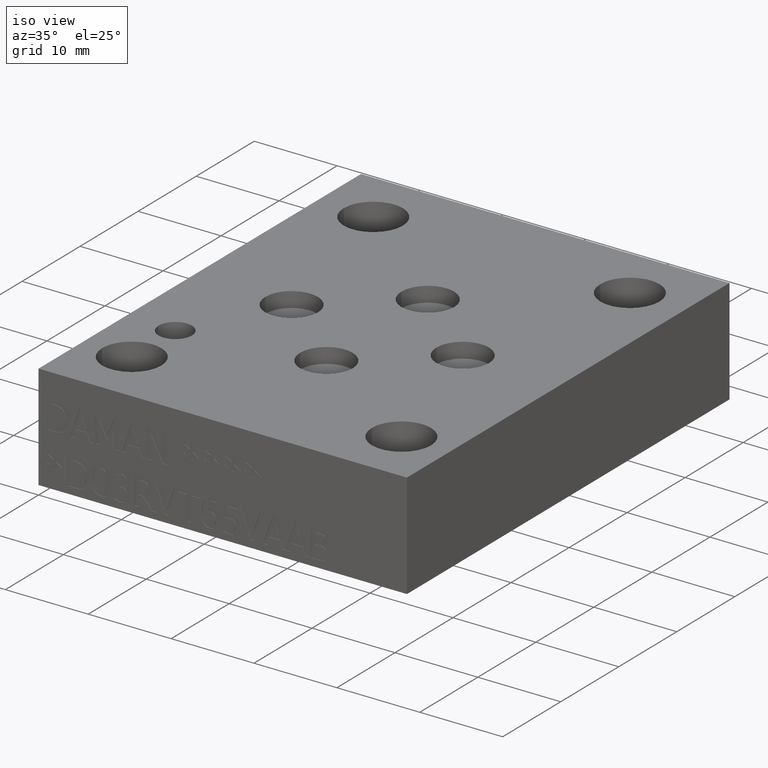
[diagram: clean part render]
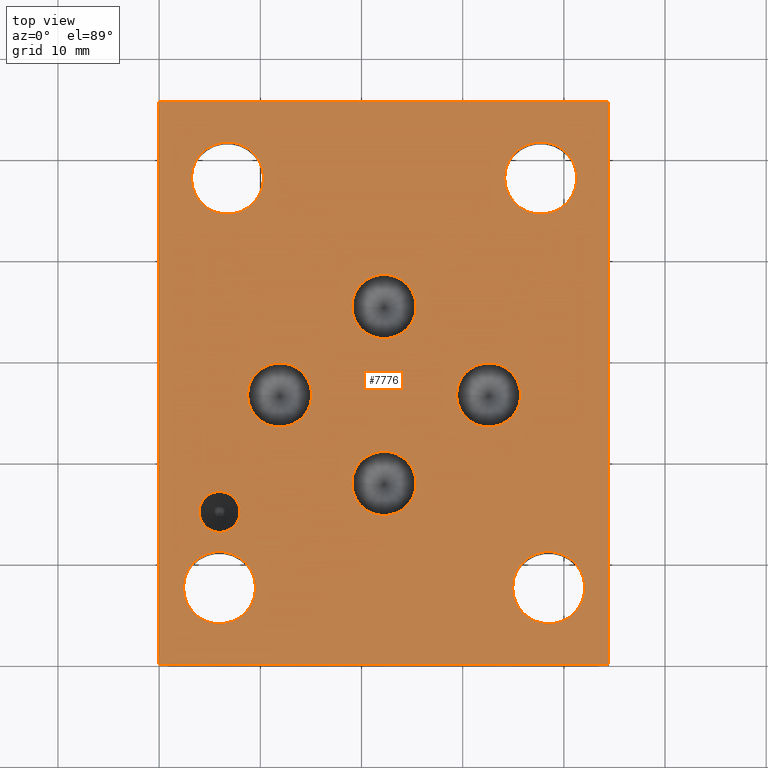
[diagram: tour spotlight — one face highlighted and labeled with its STEP entity id]
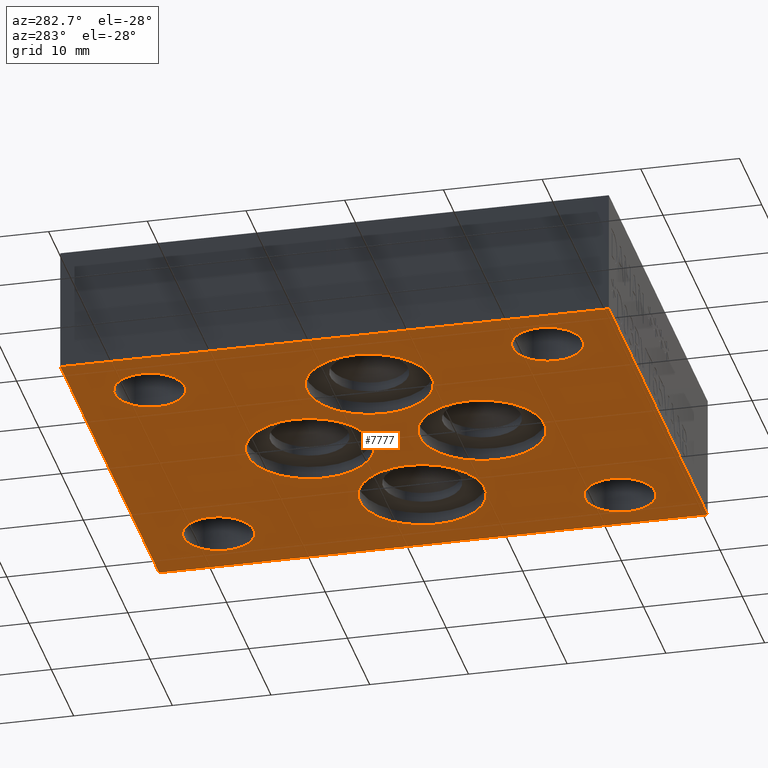
[diagram: tour spotlight — one face highlighted and labeled with its STEP entity id]
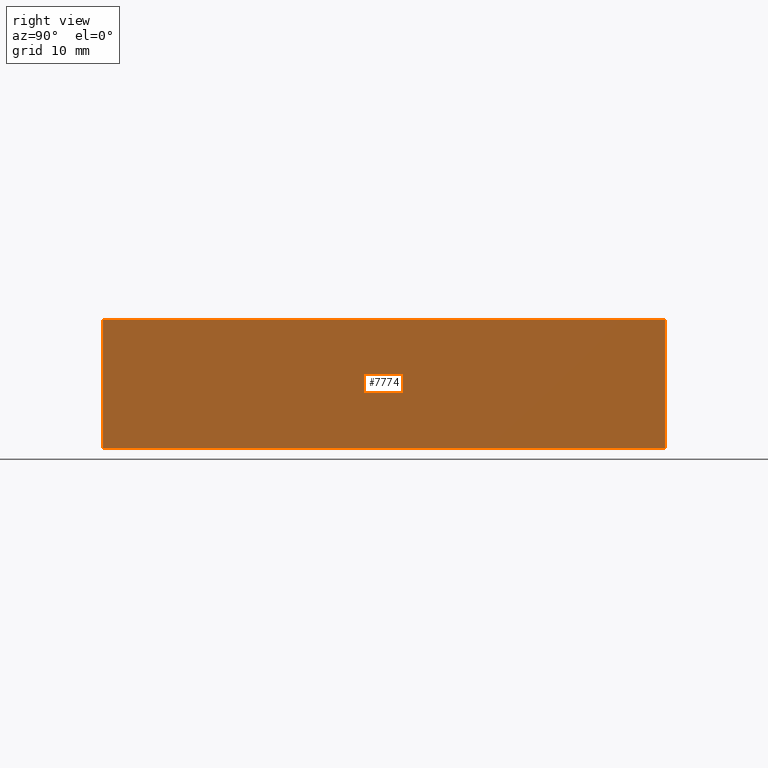
[diagram: tour spotlight — one face highlighted and labeled with its STEP entity id]
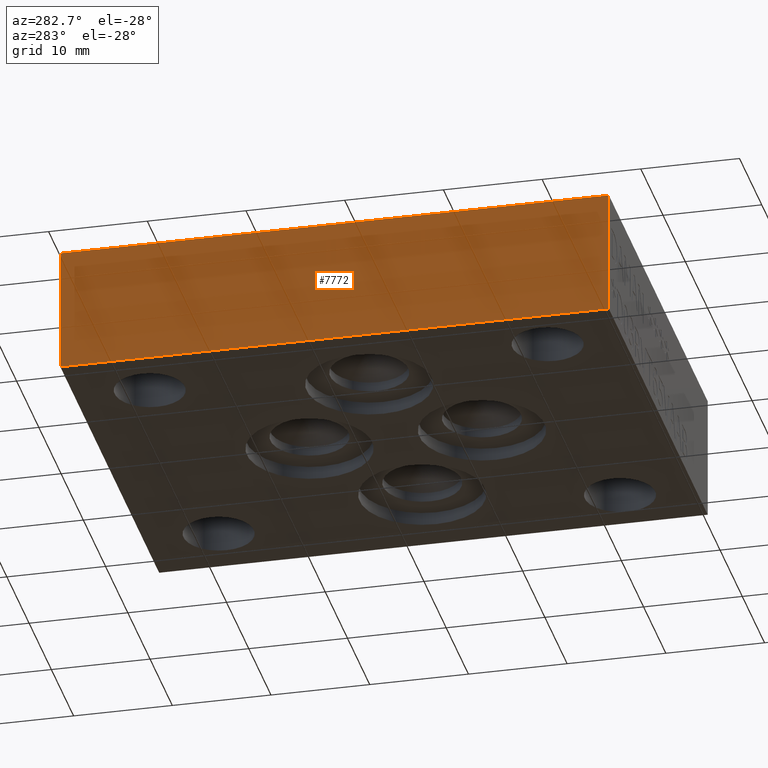
[diagram: tour spotlight — one face highlighted and labeled with its STEP entity id]
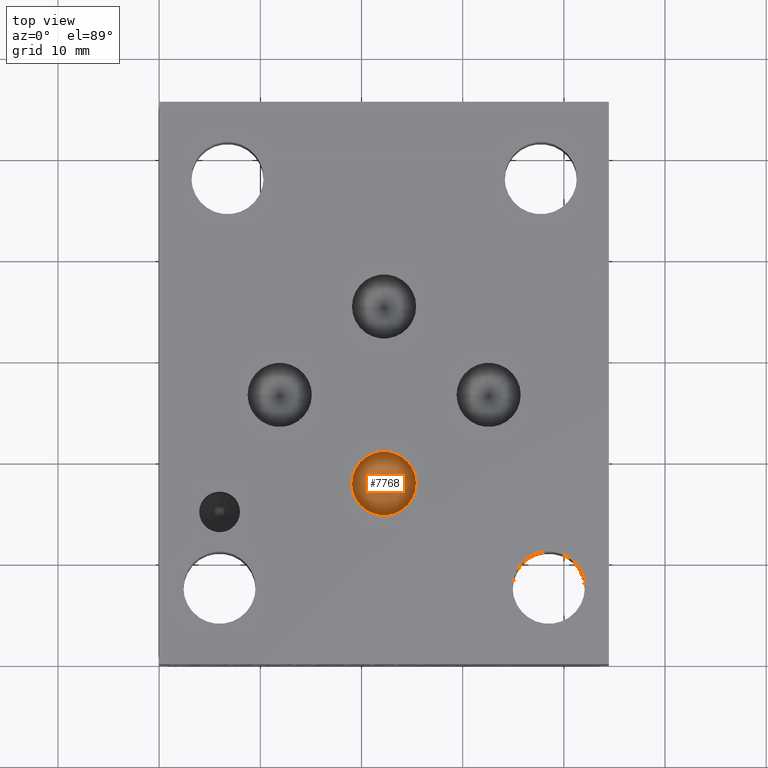
[diagram: tour spotlight — one face highlighted and labeled with its STEP entity id]
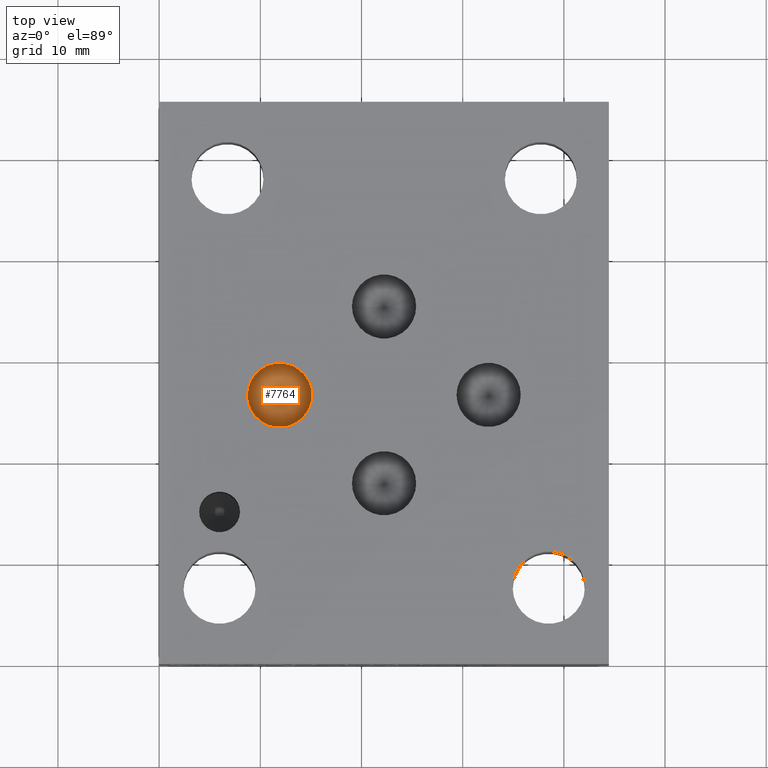
[diagram: tour spotlight — one face highlighted and labeled with its STEP entity id]
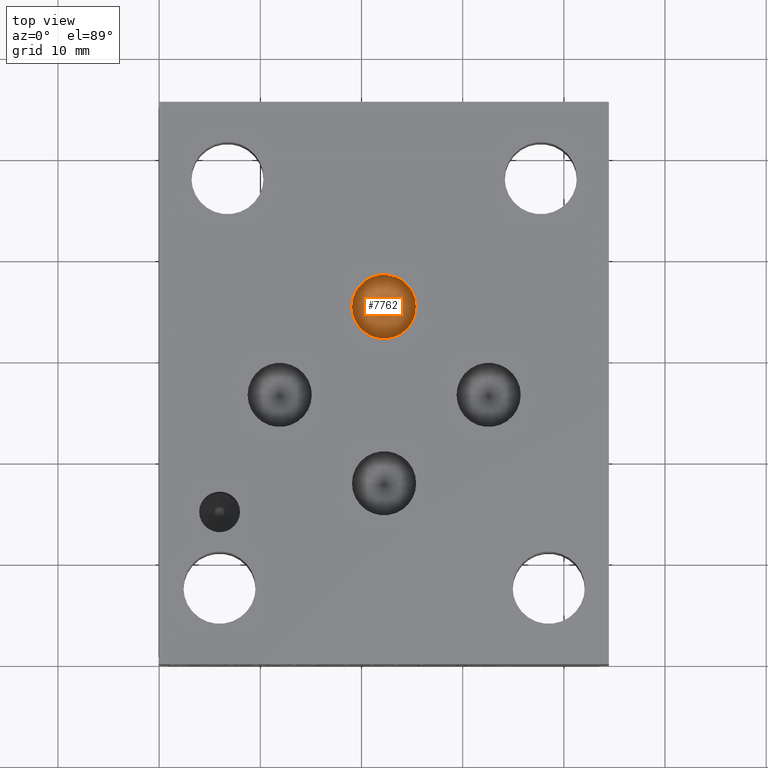
[diagram: tour spotlight — one face highlighted and labeled with its STEP entity id]
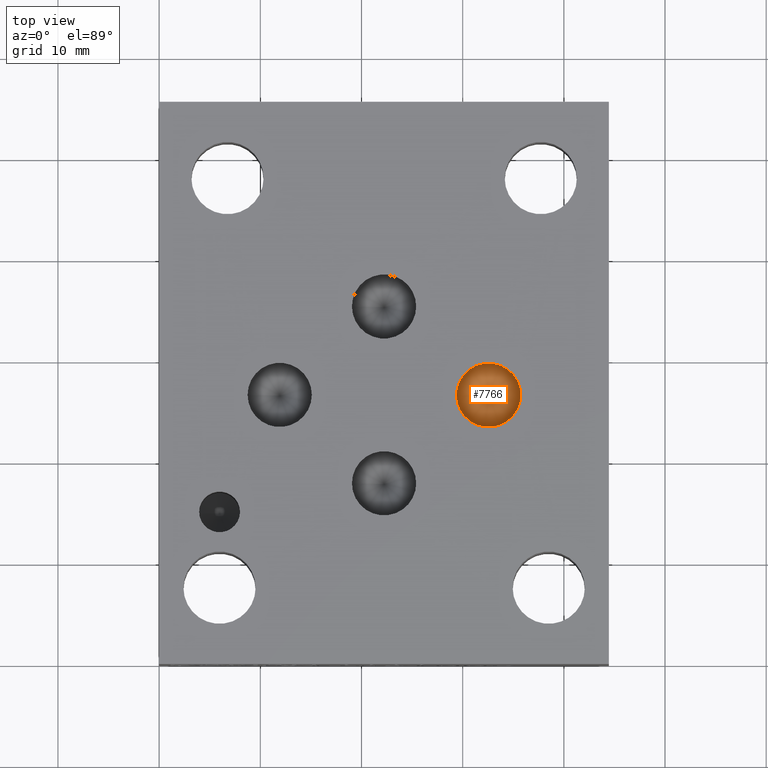
[diagram: tour spotlight — one face highlighted and labeled with its STEP entity id]
A machine part: a face-by-face anatomy tour. The part has 394 B-rep faces; the first image is the clean iso view, then the 8 largest visible faces are spotlighted one at a time (largest first), each with its STEP entity span.

Face 1 — top view, entity #7776. In plain terms, the highlighted planar face has unit normal (0, 0, 1).
Definition (entity closure, byte-faithful):
#39=CIRCLE('',#8086,3.5687);
#41=CIRCLE('',#8089,3.5687);
#43=CIRCLE('',#8092,3.5687);
#45=CIRCLE('',#8095,3.5687);
#48=CIRCLE('',#8100,3.175);
#50=CIRCLE('',#8104,3.175);
#52=CIRCLE('',#8108,3.175);
#54=CIRCLE('',#8112,3.175);
#56=CIRCLE('',#8116,2.0193);
#409=FACE_BOUND('',#1248,.T.);
#410=FACE_BOUND('',#1249,.T.);
#411=FACE_BOUND('',#1250,.T.);
#412=FACE_BOUND('',#1251,.T.);
#413=FACE_BOUND('',#1252,.T.);
#414=FACE_BOUND('',#1253,.T.);
#415=FACE_BOUND('',#1254,.T.);
#416=FACE_BOUND('',#1255,.T.);
#417=FACE_BOUND('',#1256,.T.);
#818=FACE_OUTER_BOUND('',#1247,.T.);
#1247=EDGE_LOOP('',(#6743,#6744,#6745,#6746));
#1248=EDGE_LOOP('',(#6747));
#1249=EDGE_LOOP('',(#6748));
#1250=EDGE_LOOP('',(#6749));
#1251=EDGE_LOOP('',(#6750));
#1252=EDGE_LOOP('',(#6751));
#1253=EDGE_LOOP('',(#6752));
#1254=EDGE_LOOP('',(#6753));
#1255=EDGE_LOOP('',(#6754));
#1256=EDGE_LOOP('',(#6755));
#1645=LINE('',#10507,#2464);
#2078=LINE('',#13039,#2897);
#2081=LINE('',#13045,#2900);
#2084=LINE('',#13049,#2903);
#2464=VECTOR('',#8770,10.);
#2897=VECTOR('',#9583,10.);
#2900=VECTOR('',#9588,10.);
#2903=VECTOR('',#9593,10.);
#3168=VERTEX_POINT('',#10504);
#3169=VERTEX_POINT('',#10506);
#3582=VERTEX_POINT('',#12967);
#3584=VERTEX_POINT('',#12973);
#3586=VERTEX_POINT('',#12979);
#3588=VERTEX_POINT('',#12985);
#3592=VERTEX_POINT('',#12996);
#3595=VERTEX_POINT('',#13005);
#3598=VERTEX_POINT('',#13014);
#3601=VERTEX_POINT('',#13023);
#3604=VERTEX_POINT('',#13032);
#3606=VERTEX_POINT('',#13038);
#3608=VERTEX_POINT('',#13044);
#4004=EDGE_CURVE('',#3169,#3168,#1645,.T.);
#4622=EDGE_CURVE('',#3582,#3582,#39,.T.);
#4625=EDGE_CURVE('',#3584,#3584,#41,.T.);
#4628=EDGE_CURVE('',#3586,#3586,#43,.T.);
#4631=EDGE_CURVE('',#3588,#3588,#45,.T.);
#4636=EDGE_CURVE('',#3592,#3592,#48,.T.);
#4640=EDGE_CURVE('',#3595,#3595,#50,.T.);
#4644=EDGE_CURVE('',#3598,#3598,#52,.T.);
#4648=EDGE_CURVE('',#3601,#3601,#54,.T.);
#4652=EDGE_CURVE('',#3604,#3604,#56,.T.);
#4655=EDGE_CURVE('',#3606,#3169,#2078,.T.);
#4658=EDGE_CURVE('',#3608,#3606,#2081,.T.);
#4661=EDGE_CURVE('',#3168,#3608,#2084,.T.);
#6743=ORIENTED_EDGE('',*,*,#4004,.T.);
#6744=ORIENTED_EDGE('',*,*,#4661,.T.);
#6745=ORIENTED_EDGE('',*,*,#4658,.T.);
#6746=ORIENTED_EDGE('',*,*,#4655,.T.);
#6747=ORIENTED_EDGE('',*,*,#4622,.T.);
#6748=ORIENTED_EDGE('',*,*,#4625,.T.);
#6749=ORIENTED_EDGE('',*,*,#4628,.T.);
#6750=ORIENTED_EDGE('',*,*,#4631,.T.);
#6751=ORIENTED_EDGE('',*,*,#4636,.T.);
#6752=ORIENTED_EDGE('',*,*,#4640,.T.);
#6753=ORIENTED_EDGE('',*,*,#4644,.T.);
#6754=ORIENTED_EDGE('',*,*,#4648,.T.);
#6755=ORIENTED_EDGE('',*,*,#4652,.T.);
#7034=PLANE('',#8121);
#7776=ADVANCED_FACE('',(#818,#409,#410,#411,#412,#413,#414,#415,#416,#417),
#7034,.T.);
#8086=AXIS2_PLACEMENT_3D('',#12968,#9504,#9505);
#8089=AXIS2_PLACEMENT_3D('',#12974,#9511,#9512);
#8092=AXIS2_PLACEMENT_3D('',#12980,#9518,#9519);
#8095=AXIS2_PLACEMENT_3D('',#12986,#9525,#9526);
#8100=AXIS2_PLACEMENT_3D('',#12997,#9537,#9538);
#8104=AXIS2_PLACEMENT_3D('',#13006,#9547,#9548);
#8108=AXIS2_PLACEMENT_3D('',#13015,#9557,#9558);
#8112=AXIS2_PLACEMENT_3D('',#13024,#9567,#9568);
#8116=AXIS2_PLACEMENT_3D('',#13033,#9577,#9578);
#8121=AXIS2_PLACEMENT_3D('',#13051,#9596,#9597);
#8770=DIRECTION('',(1.,0.,0.));
#9504=DIRECTION('center_axis',(0.,0.,-1.));
#9505=DIRECTION('ref_axis',(1.,0.,0.));
#9511=DIRECTION('center_axis',(0.,0.,-1.));
#9512=DIRECTION('ref_axis',(1.,0.,0.));
#9518=DIRECTION('center_axis',(0.,0.,-1.));
#9519=DIRECTION('ref_axis',(1.,0.,0.));
#9525=DIRECTION('center_axis',(0.,0.,-1.));
#9526=DIRECTION('ref_axis',(1.,0.,0.));
#9537=DIRECTION('center_axis',(0.,0.,-1.));
#9538=DIRECTION('ref_axis',(1.,0.,0.));
#9547=DIRECTION('center_axis',(0.,0.,-1.));
#9548=DIRECTION('ref_axis',(1.,0.,0.));
#9557=DIRECTION('center_axis',(0.,0.,-1.));
#9558=DIRECTION('ref_axis',(1.,0.,0.));
#9567=DIRECTION('center_axis',(0.,0.,-1.));
#9568=DIRECTION('ref_axis',(1.,0.,0.));
#9577=DIRECTION('center_axis',(0.,0.,-1.));
#9578=DIRECTION('ref_axis',(1.,0.,0.));
#9583=DIRECTION('',(0.,-1.,0.));
#9588=DIRECTION('',(-1.,0.,0.));
#9593=DIRECTION('',(0.,1.,0.));
#9596=DIRECTION('center_axis',(0.,0.,1.));
#9597=DIRECTION('ref_axis',(1.,0.,0.));
#10504=CARTESIAN_POINT('',(44.45,0.,12.7));
#10506=CARTESIAN_POINT('',(0.,0.,12.7));
#10507=CARTESIAN_POINT('',(0.,0.,12.7));
#12967=CARTESIAN_POINT('',(3.1877,48.0314,12.7));
#12968=CARTESIAN_POINT('Origin',(6.7564,48.0314,12.7));
#12973=CARTESIAN_POINT('',(2.4003,7.5438,12.7));
#12974=CARTESIAN_POINT('Origin',(5.969,7.5438,12.7));
#12979=CARTESIAN_POINT('',(34.9377,7.5438,12.7));
#12980=CARTESIAN_POINT('Origin',(38.5064,7.5438,12.7));
#12985=CARTESIAN_POINT('',(34.1503,48.0314,12.7));
#12986=CARTESIAN_POINT('Origin',(37.719,48.0314,12.7));
#12996=CARTESIAN_POINT('',(19.05,35.3314,12.7));
#12997=CARTESIAN_POINT('Origin',(22.225,35.3314,12.7));
#13005=CARTESIAN_POINT('',(8.7376,26.5938,12.7));
#13006=CARTESIAN_POINT('Origin',(11.9126,26.5938,12.7));
#13014=CARTESIAN_POINT('',(29.3878,26.5938,12.7));
#13015=CARTESIAN_POINT('Origin',(32.5628,26.5938,12.7));
#13023=CARTESIAN_POINT('',(19.05,17.8562,12.7));
#13024=CARTESIAN_POINT('Origin',(22.225,17.8562,12.7));
#13032=CARTESIAN_POINT('',(3.9497,15.0368,12.7));
#13033=CARTESIAN_POINT('Origin',(5.969,15.0368,12.7));
#13038=CARTESIAN_POINT('',(0.,55.5752,12.7));
#13039=CARTESIAN_POINT('',(0.,55.5752,12.7));
#13044=CARTESIAN_POINT('',(44.45,55.5752,12.7));
#13045=CARTESIAN_POINT('',(44.45,55.5752,12.7));
#13049=CARTESIAN_POINT('',(44.45,0.,12.7));
#13051=CARTESIAN_POINT('Origin',(22.225,27.7876,12.7));

Face 2 — auxiliary view, entity #7777. In plain terms, the highlighted planar face has unit normal (0, 0, 1).
Definition (entity closure, byte-faithful):
#23=CIRCLE('',#8054,6.35);
#26=CIRCLE('',#8059,6.35);
#29=CIRCLE('',#8064,6.35);
#32=CIRCLE('',#8069,6.35);
#40=CIRCLE('',#8087,3.5687);
#42=CIRCLE('',#8090,3.5687);
#44=CIRCLE('',#8093,3.5687);
#46=CIRCLE('',#8096,3.5687);
#418=FACE_BOUND('',#1258,.T.);
#419=FACE_BOUND('',#1259,.T.);
#420=FACE_BOUND('',#1260,.T.);
#421=FACE_BOUND('',#1261,.T.);
#422=FACE_BOUND('',#1262,.T.);
#423=FACE_BOUND('',#1263,.T.);
#424=FACE_BOUND('',#1264,.T.);
#425=FACE_BOUND('',#1265,.T.);
#819=FACE_OUTER_BOUND('',#1257,.T.);
#1257=EDGE_LOOP('',(#6756,#6757,#6758,#6759));
#1258=EDGE_LOOP('',(#6760));
#1259=EDGE_LOOP('',(#6761));
#1260=EDGE_LOOP('',(#6762));
#1261=EDGE_LOOP('',(#6763));
#1262=EDGE_LOOP('',(#6764));
#1263=EDGE_LOOP('',(#6765));
#1264=EDGE_LOOP('',(#6766));
#1265=EDGE_LOOP('',(#6767));
#1643=LINE('',#10503,#2462);
#2077=LINE('',#13037,#2896);
#2080=LINE('',#13043,#2899);
#2083=LINE('',#13048,#2902);
#2462=VECTOR('',#8768,10.);
#2896=VECTOR('',#9582,10.);
#2899=VECTOR('',#9587,10.);
#2902=VECTOR('',#9592,10.);
#3166=VERTEX_POINT('',#10501);
#3167=VERTEX_POINT('',#10502);
#3562=VERTEX_POINT('',#12903);
#3565=VERTEX_POINT('',#12912);
#3568=VERTEX_POINT('',#12921);
#3571=VERTEX_POINT('',#12930);
#3583=VERTEX_POINT('',#12969);
#3585=VERTEX_POINT('',#12975);
#3587=VERTEX_POINT('',#12981);
#3589=VERTEX_POINT('',#12987);
#3605=VERTEX_POINT('',#13036);
#3607=VERTEX_POINT('',#13042);
#4002=EDGE_CURVE('',#3166,#3167,#1643,.T.);
#4594=EDGE_CURVE('',#3562,#3562,#23,.T.);
#4598=EDGE_CURVE('',#3565,#3565,#26,.T.);
#4602=EDGE_CURVE('',#3568,#3568,#29,.T.);
#4606=EDGE_CURVE('',#3571,#3571,#32,.T.);
#4624=EDGE_CURVE('',#3583,#3583,#40,.T.);
#4627=EDGE_CURVE('',#3585,#3585,#42,.T.);
#4630=EDGE_CURVE('',#3587,#3587,#44,.T.);
#4633=EDGE_CURVE('',#3589,#3589,#46,.T.);
#4654=EDGE_CURVE('',#3605,#3166,#2077,.T.);
#4657=EDGE_CURVE('',#3607,#3605,#2080,.T.);
#4660=EDGE_CURVE('',#3167,#3607,#2083,.T.);
#6756=ORIENTED_EDGE('',*,*,#4002,.F.);
#6757=ORIENTED_EDGE('',*,*,#4654,.F.);
#6758=ORIENTED_EDGE('',*,*,#4657,.F.);
#6759=ORIENTED_EDGE('',*,*,#4660,.F.);
#6760=ORIENTED_EDGE('',*,*,#4594,.T.);
#6761=ORIENTED_EDGE('',*,*,#4598,.T.);
#6762=ORIENTED_EDGE('',*,*,#4602,.T.);
#6763=ORIENTED_EDGE('',*,*,#4606,.T.);
#6764=ORIENTED_EDGE('',*,*,#4624,.T.);
#6765=ORIENTED_EDGE('',*,*,#4627,.T.);
#6766=ORIENTED_EDGE('',*,*,#4630,.T.);
#6767=ORIENTED_EDGE('',*,*,#4633,.T.);
#7035=PLANE('',#8122);
#7777=ADVANCED_FACE('',(#819,#418,#419,#420,#421,#422,#423,#424,#425),#7035,
 .F.);
#8054=AXIS2_PLACEMENT_3D('',#12904,#9428,#9429);
#8059=AXIS2_PLACEMENT_3D('',#12913,#9439,#9440);
#8064=AXIS2_PLACEMENT_3D('',#12922,#9450,#9451);
#8069=AXIS2_PLACEMENT_3D('',#12931,#9461,#9462);
#8087=AXIS2_PLACEMENT_3D('',#12971,#9507,#9508);
#8090=AXIS2_PLACEMENT_3D('',#12977,#9514,#9515);
#8093=AXIS2_PLACEMENT_3D('',#12983,#9521,#9522);
#8096=AXIS2_PLACEMENT_3D('',#12989,#9528,#9529);
#8122=AXIS2_PLACEMENT_3D('',#13052,#9598,#9599);
#8768=DIRECTION('',(1.,0.,0.));
#9428=DIRECTION('center_axis',(0.,0.,1.));
#9429=DIRECTION('ref_axis',(1.,0.,0.));
#9439=DIRECTION('center_axis',(0.,0.,1.));
#9440=DIRECTION('ref_axis',(1.,0.,0.));
#9450=DIRECTION('center_axis',(0.,0.,1.));
#9451=DIRECTION('ref_axis',(1.,0.,0.));
#9461=DIRECTION('center_axis',(0.,0.,1.));
#9462=DIRECTION('ref_axis',(1.,0.,0.));
#9507=DIRECTION('center_axis',(0.,0.,1.));
#9508=DIRECTION('ref_axis',(1.,0.,0.));
#9514=DIRECTION('center_axis',(0.,0.,1.));
#9515=DIRECTION('ref_axis',(1.,0.,0.));
#9521=DIRECTION('center_axis',(0.,0.,1.));
#9522=DIRECTION('ref_axis',(1.,0.,0.));
#9528=DIRECTION('center_axis',(0.,0.,1.));
#9529=DIRECTION('ref_axis',(1.,0.,0.));
#9582=DIRECTION('',(0.,-1.,0.));
#9587=DIRECTION('',(-1.,0.,0.));
#9592=DIRECTION('',(0.,1.,0.));
#9598=DIRECTION('center_axis',(0.,0.,1.));
#9599=DIRECTION('ref_axis',(1.,0.,0.));
#10501=CARTESIAN_POINT('',(0.,0.,0.));
#10502=CARTESIAN_POINT('',(44.45,0.,0.));
#10503=CARTESIAN_POINT('',(0.,0.,0.));
#12903=CARTESIAN_POINT('',(27.78125,26.5938,0.));
#12904=CARTESIAN_POINT('Origin',(34.13125,26.5938,0.));
#12912=CARTESIAN_POINT('',(15.875,17.8562,0.));
#12913=CARTESIAN_POINT('Origin',(22.225,17.8562,0.));
#12921=CARTESIAN_POINT('',(3.96875,26.5938,0.));
#12922=CARTESIAN_POINT('Origin',(10.31875,26.5938,0.));
#12930=CARTESIAN_POINT('',(15.875,35.3314,0.));
#12931=CARTESIAN_POINT('Origin',(22.225,35.3314,0.));
#12969=CARTESIAN_POINT('',(3.1877,48.0314,-8.88178419700125E-15));
#12971=CARTESIAN_POINT('Origin',(6.7564,48.0314,0.));
#12975=CARTESIAN_POINT('',(2.4003,7.5438,-8.88178419700125E-15));
#12977=CARTESIAN_POINT('Origin',(5.969,7.5438,0.));
#12981=CARTESIAN_POINT('',(34.9377,7.5438,-8.88178419700125E-15));
#12983=CARTESIAN_POINT('Origin',(38.5064,7.5438,0.));
#12987=CARTESIAN_POINT('',(34.1503,48.0314,-8.88178419700125E-15));
#12989=CARTESIAN_POINT('Origin',(37.719,48.0314,0.));
#13036=CARTESIAN_POINT('',(0.,55.5752,0.));
#13037=CARTESIAN_POINT('',(0.,55.5752,0.));
#13042=CARTESIAN_POINT('',(44.45,55.5752,0.));
#13043=CARTESIAN_POINT('',(44.45,55.5752,0.));
#13048=CARTESIAN_POINT('',(44.45,0.,0.));
#13052=CARTESIAN_POINT('Origin',(22.225,27.7876,0.));

Face 3 — right view, entity #7774. In plain terms, the highlighted planar face has unit normal (1, 0, 0).
Definition (entity closure, byte-faithful):
#816=FACE_OUTER_BOUND('',#1245,.T.);
#1245=EDGE_LOOP('',(#6731,#6732,#6733,#6734));
#1644=LINE('',#10505,#2463);
#2082=LINE('',#13046,#2901);
#2083=LINE('',#13048,#2902);
#2084=LINE('',#13049,#2903);
#2463=VECTOR('',#8769,10.);
#2901=VECTOR('',#9589,10.);
#2902=VECTOR('',#9592,10.);
#2903=VECTOR('',#9593,10.);
#3167=VERTEX_POINT('',#10502);
#3168=VERTEX_POINT('',#10504);
#3607=VERTEX_POINT('',#13042);
#3608=VERTEX_POINT('',#13044);
#4003=EDGE_CURVE('',#3167,#3168,#1644,.T.);
#4659=EDGE_CURVE('',#3607,#3608,#2082,.T.);
#4660=EDGE_CURVE('',#3167,#3607,#2083,.T.);
#4661=EDGE_CURVE('',#3168,#3608,#2084,.T.);
#6731=ORIENTED_EDGE('',*,*,#4660,.T.);
#6732=ORIENTED_EDGE('',*,*,#4659,.T.);
#6733=ORIENTED_EDGE('',*,*,#4661,.F.);
#6734=ORIENTED_EDGE('',*,*,#4003,.F.);
#7032=PLANE('',#8119);
#7774=ADVANCED_FACE('',(#816),#7032,.T.);
#8119=AXIS2_PLACEMENT_3D('',#13047,#9590,#9591);
#8769=DIRECTION('',(0.,0.,1.));
#9589=DIRECTION('',(0.,0.,1.));
#9590=DIRECTION('center_axis',(1.,0.,0.));
#9591=DIRECTION('ref_axis',(0.,1.,0.));
#9592=DIRECTION('',(0.,1.,0.));
#9593=DIRECTION('',(0.,1.,0.));
#10502=CARTESIAN_POINT('',(44.45,0.,0.));
#10504=CARTESIAN_POINT('',(44.45,0.,12.7));
#10505=CARTESIAN_POINT('',(44.45,0.,0.));
#13042=CARTESIAN_POINT('',(44.45,55.5752,0.));
#13044=CARTESIAN_POINT('',(44.45,55.5752,12.7));
#13046=CARTESIAN_POINT('',(44.45,55.5752,0.));
#13047=CARTESIAN_POINT('Origin',(44.45,0.,0.));
#13048=CARTESIAN_POINT('',(44.45,0.,0.));
#13049=CARTESIAN_POINT('',(44.45,0.,12.7));

Face 4 — auxiliary view, entity #7772. In plain terms, the highlighted planar face has unit normal (-1, 0, 0).
Definition (entity closure, byte-faithful):
#814=FACE_OUTER_BOUND('',#1243,.T.);
#1243=EDGE_LOOP('',(#6723,#6724,#6725,#6726));
#1646=LINE('',#10508,#2465);
#2077=LINE('',#13037,#2896);
#2078=LINE('',#13039,#2897);
#2079=LINE('',#13040,#2898);
#2465=VECTOR('',#8771,10.);
#2896=VECTOR('',#9582,10.);
#2897=VECTOR('',#9583,10.);
#2898=VECTOR('',#9584,10.);
#3166=VERTEX_POINT('',#10501);
#3169=VERTEX_POINT('',#10506);
#3605=VERTEX_POINT('',#13036);
#3606=VERTEX_POINT('',#13038);
#4005=EDGE_CURVE('',#3166,#3169,#1646,.T.);
#4654=EDGE_CURVE('',#3605,#3166,#2077,.T.);
#4655=EDGE_CURVE('',#3606,#3169,#2078,.T.);
#4656=EDGE_CURVE('',#3605,#3606,#2079,.T.);
#6723=ORIENTED_EDGE('',*,*,#4654,.T.);
#6724=ORIENTED_EDGE('',*,*,#4005,.T.);
#6725=ORIENTED_EDGE('',*,*,#4655,.F.);
#6726=ORIENTED_EDGE('',*,*,#4656,.F.);
#7030=PLANE('',#8117);
#7772=ADVANCED_FACE('',(#814),#7030,.T.);
#8117=AXIS2_PLACEMENT_3D('',#13035,#9580,#9581);
#8771=DIRECTION('',(0.,0.,1.));
#9580=DIRECTION('center_axis',(-1.,0.,0.));
#9581=DIRECTION('ref_axis',(0.,-1.,0.));
#9582=DIRECTION('',(0.,-1.,0.));
#9583=DIRECTION('',(0.,-1.,0.));
#9584=DIRECTION('',(0.,0.,1.));
#10501=CARTESIAN_POINT('',(0.,0.,0.));
#10506=CARTESIAN_POINT('',(0.,0.,12.7));
#10508=CARTESIAN_POINT('',(0.,0.,0.));
#13035=CARTESIAN_POINT('Origin',(0.,55.5752,0.));
#13036=CARTESIAN_POINT('',(0.,55.5752,0.));
#13037=CARTESIAN_POINT('',(0.,55.5752,0.));
#13038=CARTESIAN_POINT('',(0.,55.5752,12.7));
#13039=CARTESIAN_POINT('',(0.,55.5752,12.7));
#13040=CARTESIAN_POINT('',(0.,55.5752,0.));

Face 5 — top view, entity #7768. In plain terms, the highlighted conical surface has half-angle 60 deg.
Definition (entity closure, byte-faithful):
#21=CONICAL_SURFACE('',#8109,1.5875,1.0471975511966);
#53=CIRCLE('',#8110,3.175);
#810=FACE_OUTER_BOUND('',#1239,.T.);
#1239=EDGE_LOOP('',(#6709,#6710,#6711));
#2073=LINE('',#13021,#2892);
#2892=VECTOR('',#9564,1.5875);
#3599=VERTEX_POINT('',#13018);
#3600=VERTEX_POINT('',#13020);
#4646=EDGE_CURVE('',#3599,#3599,#53,.T.);
#4647=EDGE_CURVE('',#3599,#3600,#2073,.T.);
#6709=ORIENTED_EDGE('',*,*,#4646,.T.);
#6710=ORIENTED_EDGE('',*,*,#4647,.T.);
#6711=ORIENTED_EDGE('',*,*,#4647,.F.);
#7768=ADVANCED_FACE('',(#810),#21,.F.);
#8109=AXIS2_PLACEMENT_3D('',#13017,#9560,#9561);
#8110=AXIS2_PLACEMENT_3D('',#13019,#9562,#9563);
#9560=DIRECTION('center_axis',(0.,0.,1.));
#9561=DIRECTION('ref_axis',(1.,0.,0.));
#9562=DIRECTION('center_axis',(0.,0.,1.));
#9563=DIRECTION('ref_axis',(1.,0.,0.));
#9564=DIRECTION('',(0.866025403784439,1.06057523872491E-16,-0.5));
#13017=CARTESIAN_POINT('Origin',(22.225,17.8562,9.95036644766147));
#13018=CARTESIAN_POINT('',(19.05,17.8562,10.86691));
#13019=CARTESIAN_POINT('Origin',(22.225,17.8562,10.86691));
#13020=CARTESIAN_POINT('',(22.225,17.8562,9.03382289532294));
#13021=CARTESIAN_POINT('',(20.6375,17.8562,9.95036644766147));

Face 6 — top view, entity #7764. In plain terms, the highlighted conical surface has half-angle 60 deg.
Definition (entity closure, byte-faithful):
#19=CONICAL_SURFACE('',#8101,1.5875,1.0471975511966);
#49=CIRCLE('',#8102,3.175);
#806=FACE_OUTER_BOUND('',#1235,.T.);
#1235=EDGE_LOOP('',(#6695,#6696,#6697));
#2069=LINE('',#13003,#2888);
#2888=VECTOR('',#9544,1.5875);
#3593=VERTEX_POINT('',#13000);
#3594=VERTEX_POINT('',#13002);
#4638=EDGE_CURVE('',#3593,#3593,#49,.T.);
#4639=EDGE_CURVE('',#3593,#3594,#2069,.T.);
#6695=ORIENTED_EDGE('',*,*,#4638,.T.);
#6696=ORIENTED_EDGE('',*,*,#4639,.T.);
#6697=ORIENTED_EDGE('',*,*,#4639,.F.);
#7764=ADVANCED_FACE('',(#806),#19,.F.);
#8101=AXIS2_PLACEMENT_3D('',#12999,#9540,#9541);
#8102=AXIS2_PLACEMENT_3D('',#13001,#9542,#9543);
#9540=DIRECTION('center_axis',(0.,0.,1.));
#9541=DIRECTION('ref_axis',(1.,0.,0.));
#9542=DIRECTION('center_axis',(0.,0.,1.));
#9543=DIRECTION('ref_axis',(1.,0.,0.));
#9544=DIRECTION('',(0.866025403784439,1.06057523872491E-16,-0.5));
#12999=CARTESIAN_POINT('Origin',(11.9126,26.5938,9.95036644766147));
#13000=CARTESIAN_POINT('',(8.7376,26.5938,10.86691));
#13001=CARTESIAN_POINT('Origin',(11.9126,26.5938,10.86691));
#13002=CARTESIAN_POINT('',(11.9126,26.5938,9.03382289532294));
#13003=CARTESIAN_POINT('',(10.3251,26.5938,9.95036644766147));

Face 7 — top view, entity #7762. In plain terms, the highlighted conical surface has half-angle 60 deg.
Definition (entity closure, byte-faithful):
#18=CONICAL_SURFACE('',#8097,1.5875,1.0471975511966);
#47=CIRCLE('',#8098,3.175);
#804=FACE_OUTER_BOUND('',#1233,.T.);
#1233=EDGE_LOOP('',(#6688,#6689,#6690));
#2067=LINE('',#12994,#2886);
#2886=VECTOR('',#9534,1.5875);
#3590=VERTEX_POINT('',#12991);
#3591=VERTEX_POINT('',#12993);
#4634=EDGE_CURVE('',#3590,#3590,#47,.T.);
#4635=EDGE_CURVE('',#3590,#3591,#2067,.T.);
#6688=ORIENTED_EDGE('',*,*,#4634,.T.);
#6689=ORIENTED_EDGE('',*,*,#4635,.T.);
#6690=ORIENTED_EDGE('',*,*,#4635,.F.);
#7762=ADVANCED_FACE('',(#804),#18,.F.);
#8097=AXIS2_PLACEMENT_3D('',#12990,#9530,#9531);
#8098=AXIS2_PLACEMENT_3D('',#12992,#9532,#9533);
#9530=DIRECTION('center_axis',(0.,0.,1.));
#9531=DIRECTION('ref_axis',(1.,0.,0.));
#9532=DIRECTION('center_axis',(0.,0.,1.));
#9533=DIRECTION('ref_axis',(1.,0.,0.));
#9534=DIRECTION('',(0.866025403784439,1.06057523872491E-16,-0.5));
#12990=CARTESIAN_POINT('Origin',(22.225,35.3314,9.95036644766147));
#12991=CARTESIAN_POINT('',(19.05,35.3314,10.86691));
#12992=CARTESIAN_POINT('Origin',(22.225,35.3314,10.86691));
#12993=CARTESIAN_POINT('',(22.225,35.3314,9.03382289532294));
#12994=CARTESIAN_POINT('',(20.6375,35.3314,9.95036644766147));

Face 8 — top view, entity #7766. In plain terms, the highlighted conical surface has half-angle 60 deg.
Definition (entity closure, byte-faithful):
#20=CONICAL_SURFACE('',#8105,1.5875,1.0471975511966);
#51=CIRCLE('',#8106,3.175);
#808=FACE_OUTER_BOUND('',#1237,.T.);
#1237=EDGE_LOOP('',(#6702,#6703,#6704));
#2071=LINE('',#13012,#2890);
#2890=VECTOR('',#9554,1.5875);
#3596=VERTEX_POINT('',#13009);
#3597=VERTEX_POINT('',#13011);
#4642=EDGE_CURVE('',#3596,#3596,#51,.T.);
#4643=EDGE_CURVE('',#3596,#3597,#2071,.T.);
#6702=ORIENTED_EDGE('',*,*,#4642,.T.);
#6703=ORIENTED_EDGE('',*,*,#4643,.T.);
#6704=ORIENTED_EDGE('',*,*,#4643,.F.);
#7766=ADVANCED_FACE('',(#808),#20,.F.);
#8105=AXIS2_PLACEMENT_3D('',#13008,#9550,#9551);
#8106=AXIS2_PLACEMENT_3D('',#13010,#9552,#9553);
#9550=DIRECTION('center_axis',(0.,0.,1.));
#9551=DIRECTION('ref_axis',(1.,0.,0.));
#9552=DIRECTION('center_axis',(0.,0.,1.));
#9553=DIRECTION('ref_axis',(1.,0.,0.));
#9554=DIRECTION('',(0.866025403784439,1.06057523872491E-16,-0.5));
#13008=CARTESIAN_POINT('Origin',(32.5628,26.5938,9.95036644766147));
#13009=CARTESIAN_POINT('',(29.3878,26.5938,10.86691));
#13010=CARTESIAN_POINT('Origin',(32.5628,26.5938,10.86691));
#13011=CARTESIAN_POINT('',(32.5628,26.5938,9.03382289532294));
#13012=CARTESIAN_POINT('',(30.9753,26.5938,9.95036644766147));